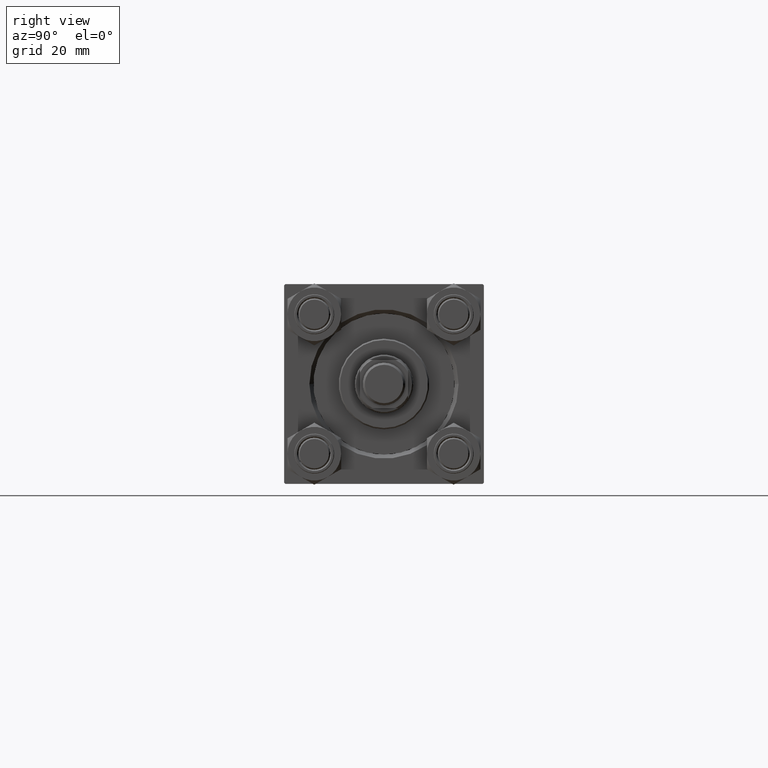
[diagram: clean part render]
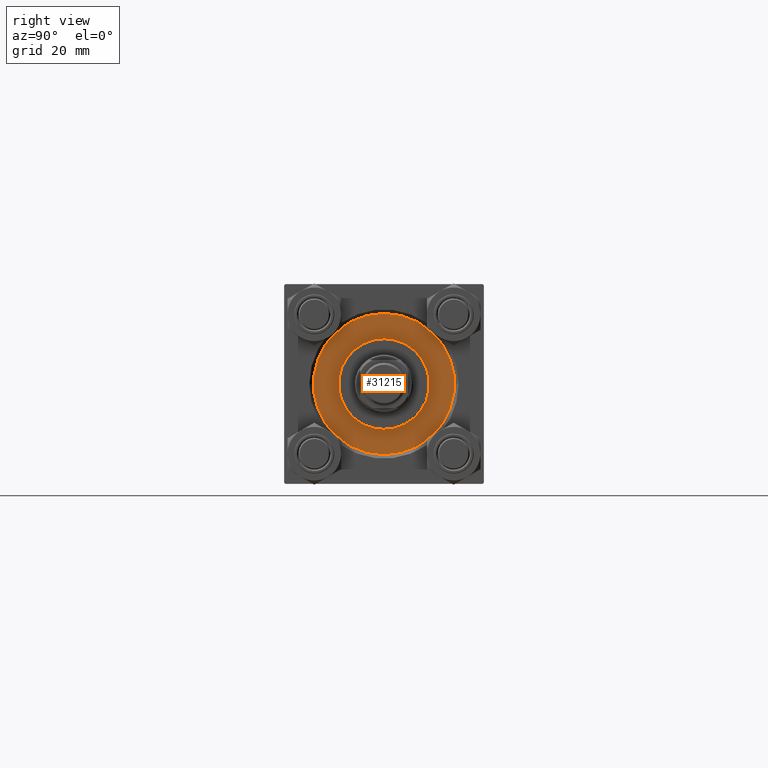
[diagram: same view with one face highlighted and labeled with its STEP entity id]
A machine part, right view. The second image highlights one B-rep face of the part: STEP entity #31215.
In plain terms, the highlighted planar face has unit normal (1, 0, 0).
Its self-contained STEP definition (entity closure, byte-faithful):
#1034 = CARTESIAN_POINT ( 'NONE',  ( 0.000000000000000000, 0.000000000000000000, 28.69999999999999929 ) ) ;
#1488 = VERTEX_POINT ( 'NONE', #29348 ) ;
#1745 = CARTESIAN_POINT ( 'NONE',  ( -26.50000000000000355, 0.000000000000000000, 28.69999999999999929 ) ) ;
#1960 = FACE_OUTER_BOUND ( 'NONE', #12996, .T. ) ;
#2471 = DIRECTION ( 'NONE',  ( 1.000000000000000000, 0.000000000000000000, 0.000000000000000000 ) ) ;
#3015 = CARTESIAN_POINT ( 'NONE',  ( 0.000000000000000000, 0.000000000000000000, 28.69999999999999929 ) ) ;
#3870 = EDGE_CURVE ( 'NONE', #1488, #10679, #6316, .T. ) ;
#5467 = AXIS2_PLACEMENT_3D ( 'NONE', #1034, #29704, #44056 ) ;
#6316 = CIRCLE ( 'NONE', #13090, 17.00000000000000000 ) ;
#10679 = VERTEX_POINT ( 'NONE', #15546 ) ;
#12996 = EDGE_LOOP ( 'NONE', ( #34891, #39623 ) ) ;
#13016 = AXIS2_PLACEMENT_3D ( 'NONE', #38914, #24085, #2471 ) ;
#13090 = AXIS2_PLACEMENT_3D ( 'NONE', #22093, #18564, #41599 ) ;
#15546 = CARTESIAN_POINT ( 'NONE',  ( 17.00000000000000000, 2.081899558550500280E-15, 28.69999999999999929 ) ) ;
#16217 = CARTESIAN_POINT ( 'NONE',  ( 26.50000000000000355, 3.245314017740486554E-15, 28.69999999999999929 ) ) ;
#16513 = AXIS2_PLACEMENT_3D ( 'NONE', #3015, #24646, #17354 ) ;
#16540 = VERTEX_POINT ( 'NONE', #1745 ) ;
#16885 = DIRECTION ( 'NONE',  ( 1.000000000000000000, 0.000000000000000000, 0.000000000000000000 ) ) ;
#17354 = DIRECTION ( 'NONE',  ( 1.000000000000000000, 0.000000000000000000, 0.000000000000000000 ) ) ;
#18317 = AXIS2_PLACEMENT_3D ( 'NONE', #42044, #38059, #16885 ) ;
#18564 = DIRECTION ( 'NONE',  ( 0.000000000000000000, 0.000000000000000000, 1.000000000000000000 ) ) ;
#20282 = EDGE_CURVE ( 'NONE', #16540, #29335, #36794, .T. ) ;
#22093 = CARTESIAN_POINT ( 'NONE',  ( 0.000000000000000000, 0.000000000000000000, 28.69999999999999929 ) ) ;
#24085 = DIRECTION ( 'NONE',  ( 0.000000000000000000, 0.000000000000000000, 1.000000000000000000 ) ) ;
#24646 = DIRECTION ( 'NONE',  ( 0.000000000000000000, 0.000000000000000000, 1.000000000000000000 ) ) ;
#29335 = VERTEX_POINT ( 'NONE', #16217 ) ;
#29348 = CARTESIAN_POINT ( 'NONE',  ( -17.00000000000000000, 0.000000000000000000, 28.69999999999999929 ) ) ;
#29704 = DIRECTION ( 'NONE',  ( 0.000000000000000000, 0.000000000000000000, 1.000000000000000000 ) ) ;
#30230 = ORIENTED_EDGE ( 'NONE', *, *, #3870, .F. ) ;
#31098 = CIRCLE ( 'NONE', #18317, 26.50000000000000355 ) ;
#31215 = ADVANCED_FACE ( 'NONE', ( #34164, #1960 ), #33234, .T. ) ;
#32064 = EDGE_CURVE ( 'NONE', #10679, #1488, #41555, .T. ) ;
#33234 = PLANE ( 'NONE',  #5467 ) ;
#33906 = EDGE_CURVE ( 'NONE', #29335, #16540, #31098, .T. ) ;
#34164 = FACE_BOUND ( 'NONE', #34628, .T. ) ;
#34455 = ORIENTED_EDGE ( 'NONE', *, *, #32064, .F. ) ;
#34628 = EDGE_LOOP ( 'NONE', ( #30230, #34455 ) ) ;
#34891 = ORIENTED_EDGE ( 'NONE', *, *, #20282, .T. ) ;
#36794 = CIRCLE ( 'NONE', #16513, 26.50000000000000355 ) ;
#38059 = DIRECTION ( 'NONE',  ( 0.000000000000000000, 0.000000000000000000, 1.000000000000000000 ) ) ;
#38914 = CARTESIAN_POINT ( 'NONE',  ( 0.000000000000000000, 0.000000000000000000, 28.69999999999999929 ) ) ;
#39623 = ORIENTED_EDGE ( 'NONE', *, *, #33906, .T. ) ;
#41555 = CIRCLE ( 'NONE', #13016, 17.00000000000000000 ) ;
#41599 = DIRECTION ( 'NONE',  ( 1.000000000000000000, 0.000000000000000000, 0.000000000000000000 ) ) ;
#42044 = CARTESIAN_POINT ( 'NONE',  ( 0.000000000000000000, 0.000000000000000000, 28.69999999999999929 ) ) ;
#44056 = DIRECTION ( 'NONE',  ( 1.000000000000000000, 0.000000000000000000, -0.000000000000000000 ) ) ;